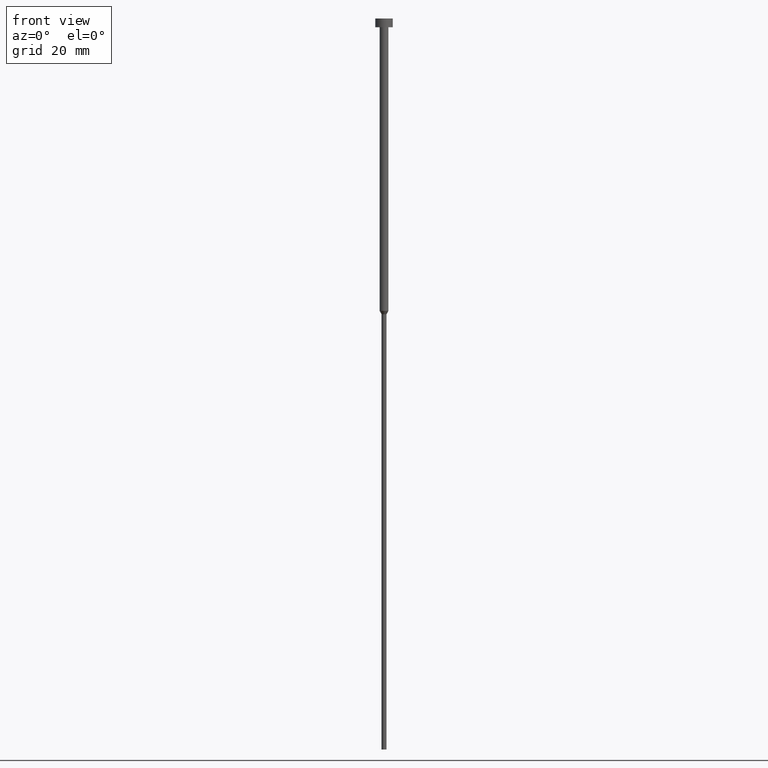
[diagram: clean part render]
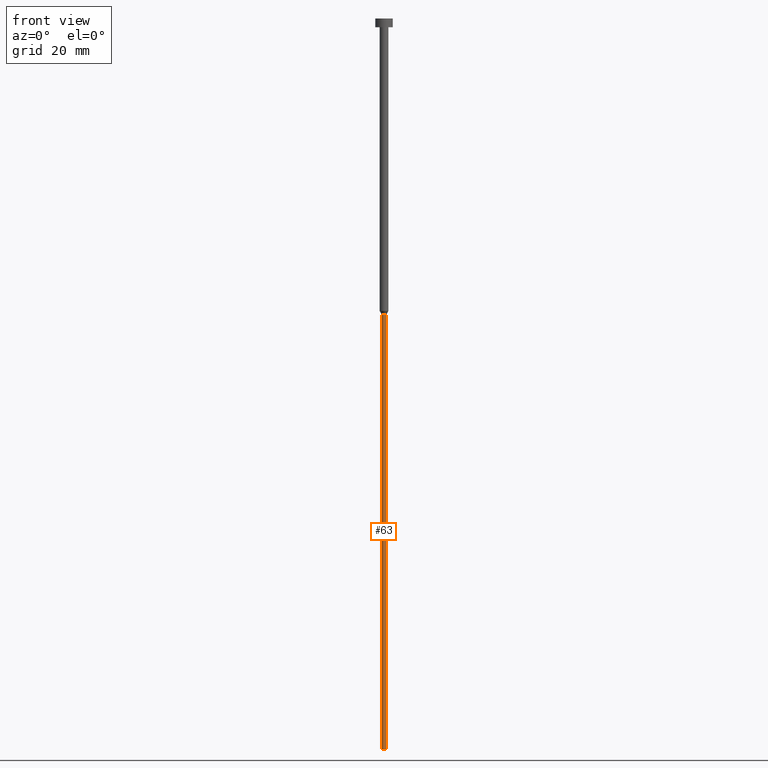
[diagram: same view with one face highlighted and labeled with its STEP entity id]
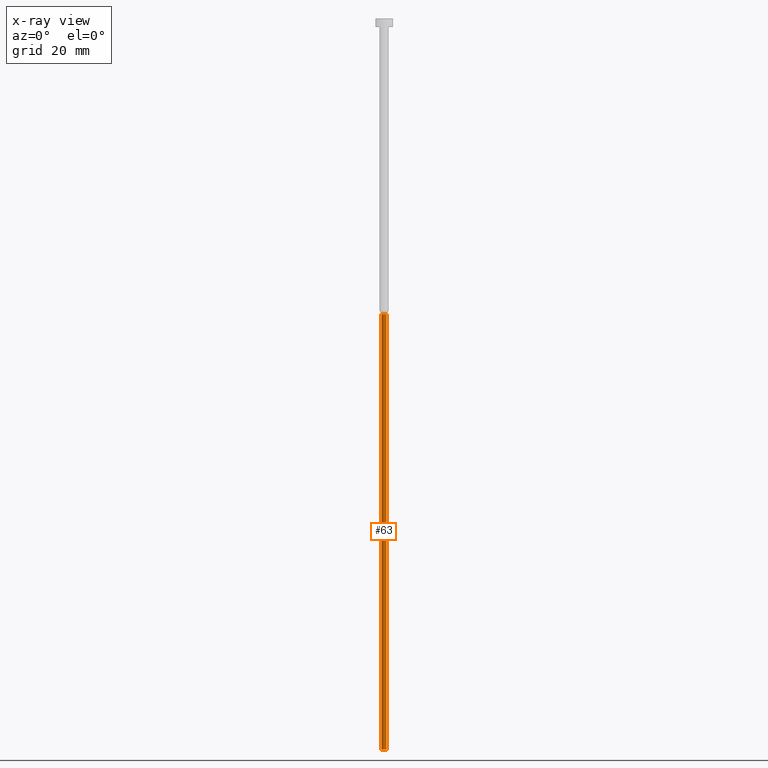
[diagram: x-ray of the same camera — body ghosted, the highlighted face saturated]
A machine part, front view. The second image highlights one B-rep face of the part: STEP entity #63.
The next image is the same camera in x-ray: the body ghosted, the highlighted face saturated — about 0% of this face is hidden behind the body in this view.
In plain terms, the highlighted cylindrical surface (edge-blend (fillet) strip) has radius 0.85 mm, axis along (-0, -0, 1).
Its self-contained STEP definition (entity closure, byte-faithful):
#10 = EDGE_LOOP ( 'NONE', ( #62, #336, #198, #308 ) ) ;
#22 = EDGE_CURVE ( 'NONE', #66, #177, #323, .T. ) ;
#29 = CARTESIAN_POINT ( 'NONE',  ( 0.8499999999999998668, 0.000000000000000000, -101.1258330249197570 ) ) ;
#50 = AXIS2_PLACEMENT_3D ( 'NONE', #137, #168, #247 ) ;
#62 = ORIENTED_EDGE ( 'NONE', *, *, #22, .F. ) ;
#63 = ADVANCED_FACE ( 'NONE', ( #270 ), #269, .T. ) ;
#66 = VERTEX_POINT ( 'NONE', #155 ) ;
#77 = CARTESIAN_POINT ( 'NONE',  ( -0.8499999999999998668, 1.040949779275250017E-16, 0.000000000000000000 ) ) ;
#97 = CARTESIAN_POINT ( 'NONE',  ( 0.8499999999999998668, 0.000000000000000000, 0.000000000000000000 ) ) ;
#102 = VERTEX_POINT ( 'NONE', #29 ) ;
#104 = DIRECTION ( 'NONE',  ( -0.000000000000000000, -0.000000000000000000, 1.000000000000000000 ) ) ;
#109 = DIRECTION ( 'NONE',  ( 1.000000000000000000, 0.000000000000000000, 0.000000000000000000 ) ) ;
#125 = CIRCLE ( 'NONE', #327, 0.8499999999999998668 ) ;
#137 = CARTESIAN_POINT ( 'NONE',  ( 0.000000000000000000, 0.000000000000000000, -250.0000000000000000 ) ) ;
#146 = EDGE_CURVE ( 'NONE', #177, #102, #125, .T. ) ;
#155 = CARTESIAN_POINT ( 'NONE',  ( -0.8499999999999998668, 1.040949779275250017E-16, -250.0000000000000000 ) ) ;
#156 = CARTESIAN_POINT ( 'NONE',  ( 0.000000000000000000, 0.000000000000000000, -101.1258330249197570 ) ) ;
#161 = DIRECTION ( 'NONE',  ( 1.000000000000000000, 0.000000000000000000, 0.000000000000000000 ) ) ;
#168 = DIRECTION ( 'NONE',  ( -0.000000000000000000, -0.000000000000000000, 1.000000000000000000 ) ) ;
#177 = VERTEX_POINT ( 'NONE', #239 ) ;
#198 = ORIENTED_EDGE ( 'NONE', *, *, #319, .T. ) ;
#202 = CIRCLE ( 'NONE', #50, 0.8499999999999998668 ) ;
#206 = AXIS2_PLACEMENT_3D ( 'NONE', #214, #352, #161 ) ;
#214 = CARTESIAN_POINT ( 'NONE',  ( 0.000000000000000000, 0.000000000000000000, 0.000000000000000000 ) ) ;
#223 = EDGE_CURVE ( 'NONE', #66, #338, #202, .T. ) ;
#236 = DIRECTION ( 'NONE',  ( -0.000000000000000000, -0.000000000000000000, 1.000000000000000000 ) ) ;
#239 = CARTESIAN_POINT ( 'NONE',  ( -0.8499999999999998668, 1.040949779275250017E-16, -101.1258330249197570 ) ) ;
#243 = VECTOR ( 'NONE', #273, 1000.000000000000000 ) ;
#247 = DIRECTION ( 'NONE',  ( 1.000000000000000000, 0.000000000000000000, 0.000000000000000000 ) ) ;
#269 = CYLINDRICAL_SURFACE ( 'NONE', #206, 0.8499999999999998668 ) ;
#270 = FACE_OUTER_BOUND ( 'NONE', #10, .T. ) ;
#273 = DIRECTION ( 'NONE',  ( -0.000000000000000000, -0.000000000000000000, 1.000000000000000000 ) ) ;
#305 = CARTESIAN_POINT ( 'NONE',  ( 0.8499999999999998668, 0.000000000000000000, -250.0000000000000000 ) ) ;
#308 = ORIENTED_EDGE ( 'NONE', *, *, #146, .F. ) ;
#319 = EDGE_CURVE ( 'NONE', #338, #102, #331, .T. ) ;
#323 = LINE ( 'NONE', #77, #350 ) ;
#327 = AXIS2_PLACEMENT_3D ( 'NONE', #156, #104, #109 ) ;
#331 = LINE ( 'NONE', #97, #243 ) ;
#336 = ORIENTED_EDGE ( 'NONE', *, *, #223, .T. ) ;
#338 = VERTEX_POINT ( 'NONE', #305 ) ;
#350 = VECTOR ( 'NONE', #236, 1000.000000000000000 ) ;
#352 = DIRECTION ( 'NONE',  ( -0.000000000000000000, -0.000000000000000000, 1.000000000000000000 ) ) ;